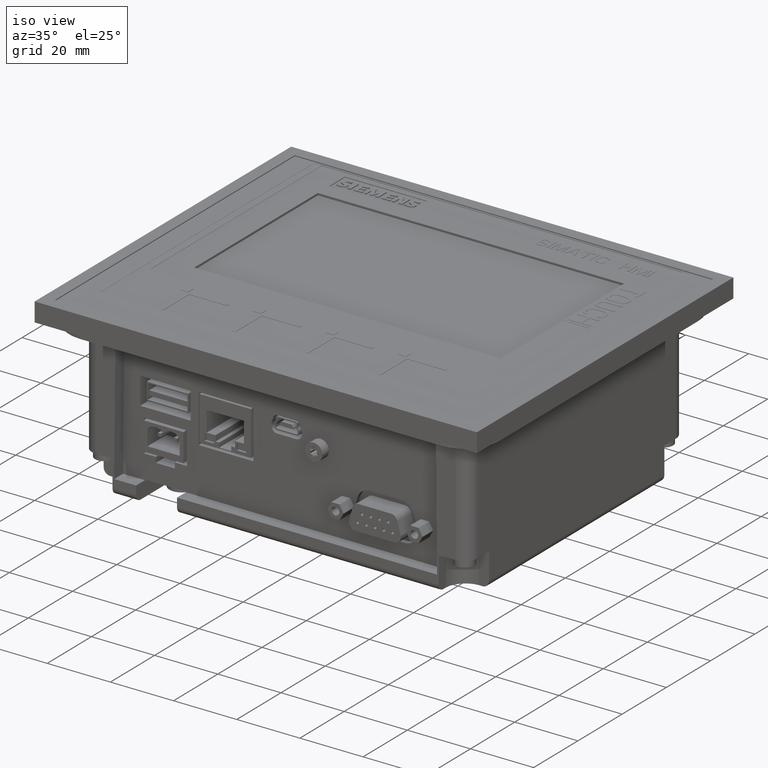
[diagram: clean part render]
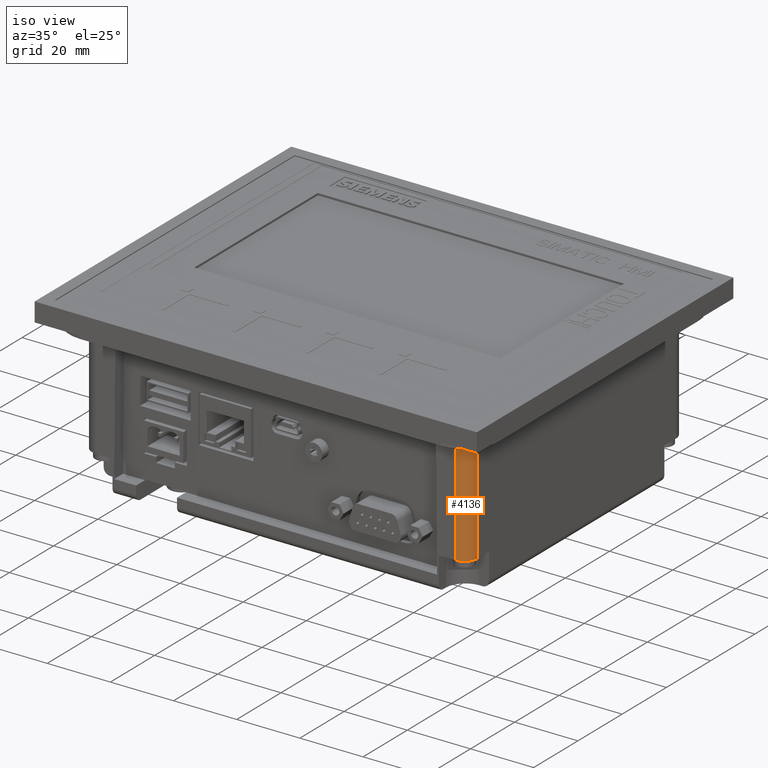
[diagram: same view with one face highlighted and labeled with its STEP entity id]
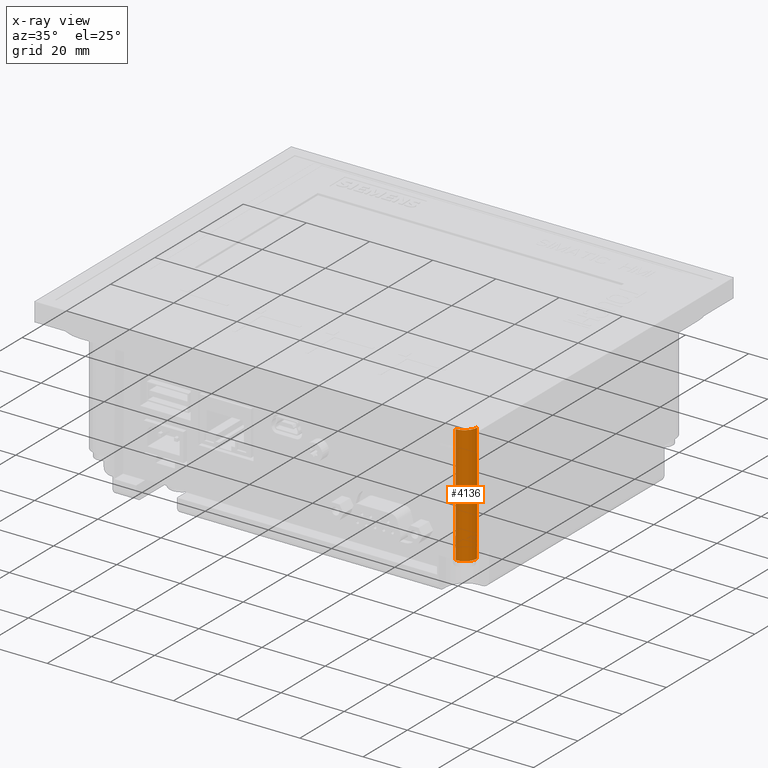
[diagram: x-ray of the same camera — body ghosted, the highlighted face saturated]
A machine part, iso view. The second image highlights one B-rep face of the part: STEP entity #4136.
The next image is the same camera in x-ray: the body ghosted, the highlighted face saturated — about 0% of this face is hidden behind the body in this view.
In plain terms, the highlighted cylindrical surface (edge-blend (fillet) strip) has radius 4 mm, axis along (0, 0, 1).
Its self-contained STEP definition (entity closure, byte-faithful):
#117=CYLINDRICAL_SURFACE('',#44079,4.);
#688=CIRCLE('',#44077,4.);
#689=CIRCLE('',#44078,4.);
#4136=ADVANCED_FACE('',(#8463),#117,.T.);
#8463=FACE_OUTER_BOUND('',#10646,.T.);
#10646=EDGE_LOOP('',(#13582,#13583,#13584,#13585));
#13582=ORIENTED_EDGE('',*,*,#28574,.F.);
#13583=ORIENTED_EDGE('',*,*,#28579,.T.);
#13584=ORIENTED_EDGE('',*,*,#28560,.T.);
#13585=ORIENTED_EDGE('',*,*,#28580,.T.);
#24705=VERTEX_POINT('',#57139);
#24706=VERTEX_POINT('',#57141);
#24719=VERTEX_POINT('',#57168);
#24720=VERTEX_POINT('',#57170);
#28560=EDGE_CURVE('',#24706,#24705,#34189,.T.);
#28574=EDGE_CURVE('',#24719,#24720,#34203,.T.);
#28579=EDGE_CURVE('',#24719,#24706,#688,.T.);
#28580=EDGE_CURVE('',#24705,#24720,#689,.T.);
#34189=LINE('',#57140,#39093);
#34203=LINE('',#57169,#39107);
#39093=VECTOR('',#46811,1.);
#39107=VECTOR('',#46827,1.);
#44077=AXIS2_PLACEMENT_3D('',#57177,#46838,#46839);
#44078=AXIS2_PLACEMENT_3D('',#57178,#46840,#46841);
#44079=AXIS2_PLACEMENT_3D('',#57179,#46842,#46843);
#46811=DIRECTION('',(0.,0.,1.));
#46827=DIRECTION('',(0.,0.,1.));
#46838=DIRECTION('',(0.,0.,1.));
#46839=DIRECTION('',(-1.,0.,0.));
#46840=DIRECTION('',(0.,0.,-1.));
#46841=DIRECTION('',(-0.999999999999999,0.,0.));
#46842=DIRECTION('',(0.,0.,1.));
#46843=DIRECTION('',(0.999999999999999,0.,0.));
#57139=CARTESIAN_POINT('',(-61.,45.,-6.));
#57140=CARTESIAN_POINT('',(-61.,45.,-54.));
#57141=CARTESIAN_POINT('',(-61.,45.,-43.5));
#57168=CARTESIAN_POINT('',(-57.,49.,-43.5));
#57169=CARTESIAN_POINT('',(-57.,49.,-54.));
#57170=CARTESIAN_POINT('',(-57.,49.,-6.));
#57177=CARTESIAN_POINT('',(-57.,45.,-43.5));
#57178=CARTESIAN_POINT('',(-57.,45.,-6.));
#57179=CARTESIAN_POINT('',(-57.,45.,-54.));